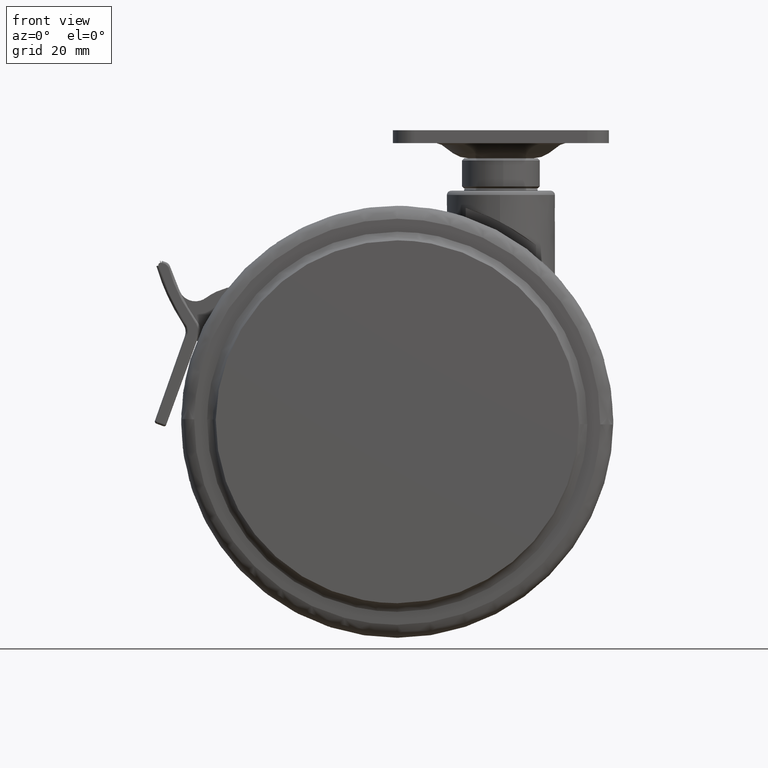
[diagram: clean part render]
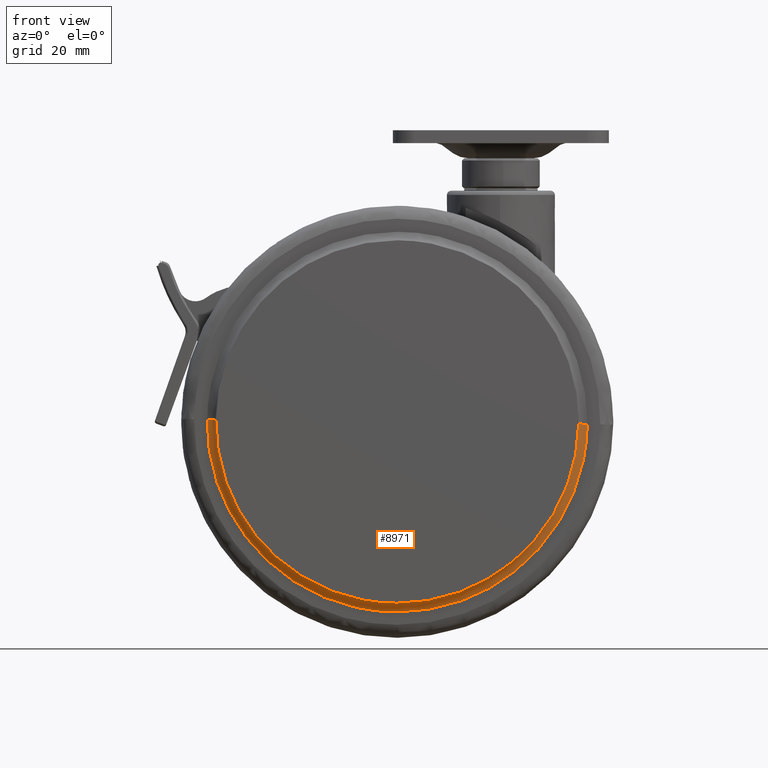
[diagram: same view with one face highlighted and labeled with its STEP entity id]
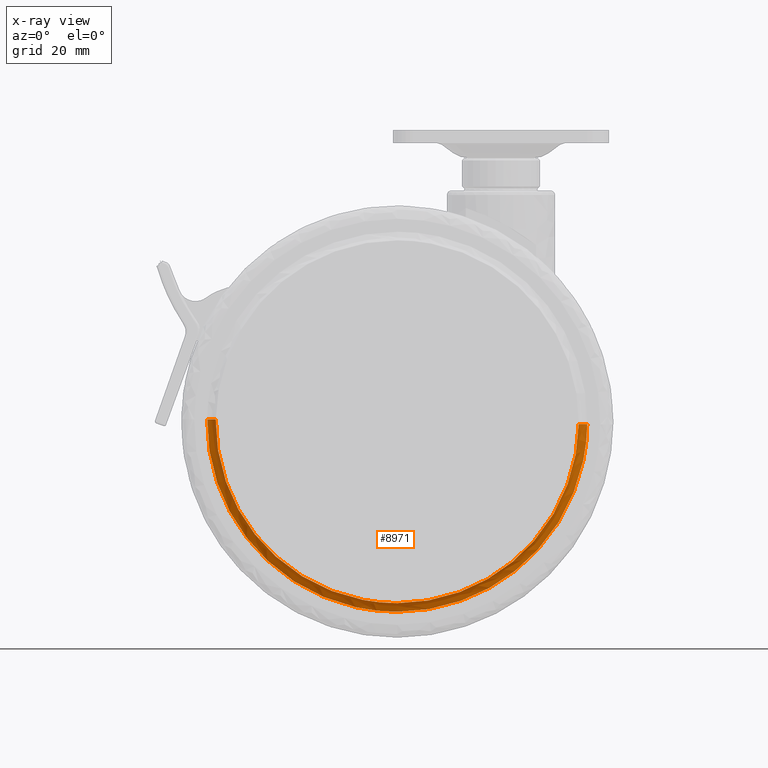
[diagram: x-ray of the same camera — body ghosted, the highlighted face saturated]
A machine part, front view. The second image highlights one B-rep face of the part: STEP entity #8971.
The next image is the same camera in x-ray: the body ghosted, the highlighted face saturated — about 0% of this face is hidden behind the body in this view.
In plain terms, the highlighted face is a freeform B-spline surface patch.
Its self-contained STEP definition (entity closure, byte-faithful):
#8811=CARTESIAN_POINT('',(-24.0,-23.500000000000011,-95.500000000000114));
#8812=VERTEX_POINT('',#8811);
#8813=CARTESIAN_POINT('',(17.996683856650520,-23.499999998967759,-54.027773675106317));
#8814=VERTEX_POINT('',#8813);
#8815=CARTESIAN_POINT('',(-24.0,-23.500000000000011,-95.500000000000114));
#8816=CARTESIAN_POINT('',(17.475501056148023,-23.499999999483890,-95.500000000000625));
#8817=CARTESIAN_POINT('',(17.996683856650520,-23.499999998967763,-54.027773675106317));
#8825=(BOUNDED_CURVE()B_SPLINE_CURVE(2,(#8815,#8816,#8817),.UNSPECIFIED.,.F.,.U.)B_SPLINE_CURVE_WITH_KNOTS((3,3),(0.0,0.247784295921710),.UNSPECIFIED.)CURVE()GEOMETRIC_REPRESENTATION_ITEM()RATIONAL_B_SPLINE_CURVE((1.0,0.709702639984261,0.994854295643970))REPRESENTATION_ITEM(''));
#8826=EDGE_CURVE('',#8812,#8814,#8825,.T.);
#8845=CARTESIAN_POINT('',(-65.996683856650520,-23.499999998967759,-52.972226324893668));
#8846=VERTEX_POINT('',#8845);
#8860=CARTESIAN_POINT('',(-65.996683856650520,-23.499999998967763,-52.972226324893668));
#8861=CARTESIAN_POINT('',(-66.000000000090012,-23.499999998970960,-53.236102744337323));
#8862=CARTESIAN_POINT('',(-66.000000000089727,-23.499999998974200,-53.499999999998877));
#8863=CARTESIAN_POINT('',(-66.000000000044579,-23.499999999490335,-95.499999999999488));
#8864=CARTESIAN_POINT('',(-24.0,-23.500000000000011,-95.500000000000114));
#8872=(BOUNDED_CURVE()B_SPLINE_CURVE(2,(#8860,#8861,#8862,#8863,#8864),.UNSPECIFIED.,.F.,.U.)B_SPLINE_CURVE_WITH_KNOTS((3,2,3),(0.747784295921710,0.750000000000000,1.0),.UNSPECIFIED.)CURVE()GEOMETRIC_REPRESENTATION_ITEM()RATIONAL_B_SPLINE_CURVE((0.994854295643970,0.997404141202286,1.0,0.707106781186547,1.0))REPRESENTATION_ITEM(''));
#8873=EDGE_CURVE('',#8846,#8812,#8872,.T.);
#8878=CARTESIAN_POINT('',(-65.974191034213831,-23.639362615198596,-51.798449733209004));
#8879=CARTESIAN_POINT('',(-65.981524133227524,-23.639362615198603,-52.381968494177755));
#8880=CARTESIAN_POINT('',(-66.516619542168158,-23.639362615198600,-94.961266747512184));
#8881=CARTESIAN_POINT('',(-24.527676397327973,-23.639362615198596,-95.488943144840178));
#8882=CARTESIAN_POINT('',(17.461266747512195,-23.639362615198600,-96.016619542168129));
#8883=CARTESIAN_POINT('',(17.996362156452818,-23.639362615198596,-53.437321288834312));
#8884=CARTESIAN_POINT('',(18.003695255466493,-23.639362615198600,-52.853802527866186));
#8885=CARTESIAN_POINT('',(-66.024017248688992,-21.542106281647374,-51.796429877520438));
#8886=CARTESIAN_POINT('',(-66.031359052589082,-21.542106281647371,-52.380641314874786));
#8887=CARTESIAN_POINT('',(-66.567089656108863,-21.542106281647381,-95.010484086035490));
#8888=CARTESIAN_POINT('',(-24.528302785036690,-21.542106281647378,-95.538786871072176));
#8889=CARTESIAN_POINT('',(17.510484086035504,-21.542106281647381,-96.067089656108848));
#8890=CARTESIAN_POINT('',(18.046214689555303,-21.542106281647385,-53.437246884948763));
#8891=CARTESIAN_POINT('',(18.053556493455382,-21.542106281647374,-52.853035447595047));
#8892=CARTESIAN_POINT('',(-68.120371215382505,-21.492258675661486,-51.711447854914972));
#8893=CARTESIAN_POINT('',(-68.128079262700908,-21.492258675661486,-52.324802483336413));
#8894=CARTESIAN_POINT('',(-68.690534607197307,-21.492258675661493,-97.081220623624446));
#8895=CARTESIAN_POINT('',(-24.554656991786423,-21.492258675661486,-97.635877615410905));
#8896=CARTESIAN_POINT('',(19.581220623624457,-21.492258675661493,-98.190534607197307));
#8897=CARTESIAN_POINT('',(20.143675968120867,-21.492258675661489,-53.434116466909927));
#8898=CARTESIAN_POINT('',(20.151384015439262,-21.492258675661482,-52.820761838489140));
#8906=(BOUNDED_SURFACE()B_SPLINE_SURFACE(2,2,((#8878,#8885,#8892),(#8879,#8886,#8893),(#8880,#8887,#8894),(#8881,#8888,#8895),(#8882,#8889,#8896),(#8883,#8890,#8897),(#8884,#8891,#8898)),.UNSPECIFIED.,.F.,.F.,.U.)B_SPLINE_SURFACE_WITH_KNOTS((3,1,2,1,3),(3,3),(0.0,1.462649812329376,74.595140428522043,147.727631044714710,149.190280857042500),(0.0,3.523862719528251),.UNSPECIFIED.)GEOMETRIC_REPRESENTATION_ITEM()RATIONAL_B_SPLINE_SURFACE(((0.924133629813956,0.668803755609012,0.924133639694583),(0.918782868414116,0.664931361829445,0.918782878237534),(0.645894037023312,0.467439279072250,0.645894043929064),(0.913432107014277,0.661058968049878,0.913432116780486),(0.645894037023312,0.467439279072250,0.645894043929064),(0.918782868414111,0.664931361829441,0.918782878237529),(0.924133629813944,0.668803755609004,0.924133639694572)))REPRESENTATION_ITEM('')SURFACE());
#8907=ORIENTED_EDGE('',*,*,#8873,.F.);
#8908=CARTESIAN_POINT('',(-67.996525944421052,-21.500000000047880,-52.947094245142608));
#8909=VERTEX_POINT('',#8908);
#8910=CARTESIAN_POINT('',(-65.996683856650520,-23.499999998967755,-52.972226324893668));
#8911=CARTESIAN_POINT('',(-66.157489801538503,-21.660818642092551,-52.970205471422446));
#8912=CARTESIAN_POINT('',(-67.996525944421052,-21.500000000047880,-52.947094245142608));
#8920=(BOUNDED_CURVE()B_SPLINE_CURVE(2,(#8910,#8911,#8912),.UNSPECIFIED.,.F.,.U.)B_SPLINE_CURVE_WITH_KNOTS((3,3),(-1.700186989994651,-0.299813009764198),.UNSPECIFIED.)CURVE()GEOMETRIC_REPRESENTATION_ITEM()RATIONAL_B_SPLINE_CURVE((0.891550928963045,0.682940150948290,0.891550929034893))REPRESENTATION_ITEM(''));
#8921=EDGE_CURVE('',#8846,#8909,#8920,.T.);
#8922=ORIENTED_EDGE('',*,*,#8921,.T.);
#8923=CARTESIAN_POINT('',(-24.0,-21.499999999999918,-97.500000000001037));
#8924=VERTEX_POINT('',#8923);
#8925=CARTESIAN_POINT('',(-67.996525944421052,-21.500000000047880,-52.947094245142608));
#8926=CARTESIAN_POINT('',(-67.999999999454801,-21.500000000047724,-53.223536208365317));
#8927=CARTESIAN_POINT('',(-67.999999999456534,-21.500000000047571,-53.500000000006821));
#8928=CARTESIAN_POINT('',(-67.999999999730505,-21.500000000023604,-97.500000000004420));
#8929=CARTESIAN_POINT('',(-24.0,-21.499999999999918,-97.500000000001037));
#8937=(BOUNDED_CURVE()B_SPLINE_CURVE(2,(#8925,#8926,#8927,#8928,#8929),.UNSPECIFIED.,.F.,.U.)B_SPLINE_CURVE_WITH_KNOTS((3,2,3),(0.747784295921741,0.750000000000000,1.0),.UNSPECIFIED.)CURVE()GEOMETRIC_REPRESENTATION_ITEM()RATIONAL_B_SPLINE_CURVE((0.994854295644042,0.997404141202323,1.0,0.707106781186547,1.0))REPRESENTATION_ITEM(''));
#8938=EDGE_CURVE('',#8909,#8924,#8937,.T.);
#8939=ORIENTED_EDGE('',*,*,#8938,.T.);
#8940=CARTESIAN_POINT('',(19.996525944421052,-21.500000000047880,-54.052905754857377));
#8941=VERTEX_POINT('',#8940);
#8942=CARTESIAN_POINT('',(-24.0,-21.499999999999918,-97.500000000001037));
#8943=CARTESIAN_POINT('',(19.450524915652107,-21.500000000023896,-97.499999999997570));
#8944=CARTESIAN_POINT('',(19.996525944421048,-21.500000000047880,-54.052905754857377));
#8952=(BOUNDED_CURVE()B_SPLINE_CURVE(2,(#8942,#8943,#8944),.UNSPECIFIED.,.F.,.U.)B_SPLINE_CURVE_WITH_KNOTS((3,3),(0.0,0.247784295921741),.UNSPECIFIED.)CURVE()GEOMETRIC_REPRESENTATION_ITEM()RATIONAL_B_SPLINE_CURVE((1.0,0.709702639984225,0.994854295644042))REPRESENTATION_ITEM(''));
#8953=EDGE_CURVE('',#8924,#8941,#8952,.T.);
#8954=ORIENTED_EDGE('',*,*,#8953,.T.);
#8955=CARTESIAN_POINT('',(17.996683856650520,-23.499999998967759,-54.027773675106317));
#8956=CARTESIAN_POINT('',(18.157489801538514,-21.660818642092554,-54.029794528577547));
#8957=CARTESIAN_POINT('',(19.996525944421045,-21.500000000047880,-54.052905754857385));
#8965=(BOUNDED_CURVE()B_SPLINE_CURVE(2,(#8955,#8956,#8957),.UNSPECIFIED.,.F.,.U.)B_SPLINE_CURVE_WITH_KNOTS((3,3),(-1.700186989994648,-0.299813009764204),.UNSPECIFIED.)CURVE()GEOMETRIC_REPRESENTATION_ITEM()RATIONAL_B_SPLINE_CURVE((0.891550928963044,0.682940150948292,0.891550929034891))REPRESENTATION_ITEM(''));
#8966=EDGE_CURVE('',#8814,#8941,#8965,.T.);
#8967=ORIENTED_EDGE('',*,*,#8966,.F.);
#8968=ORIENTED_EDGE('',*,*,#8826,.F.);
#8969=EDGE_LOOP('',(#8907,#8922,#8939,#8954,#8967,#8968));
#8970=FACE_OUTER_BOUND('',#8969,.T.);
#8971=ADVANCED_FACE('',(#8970),#8906,.F.);